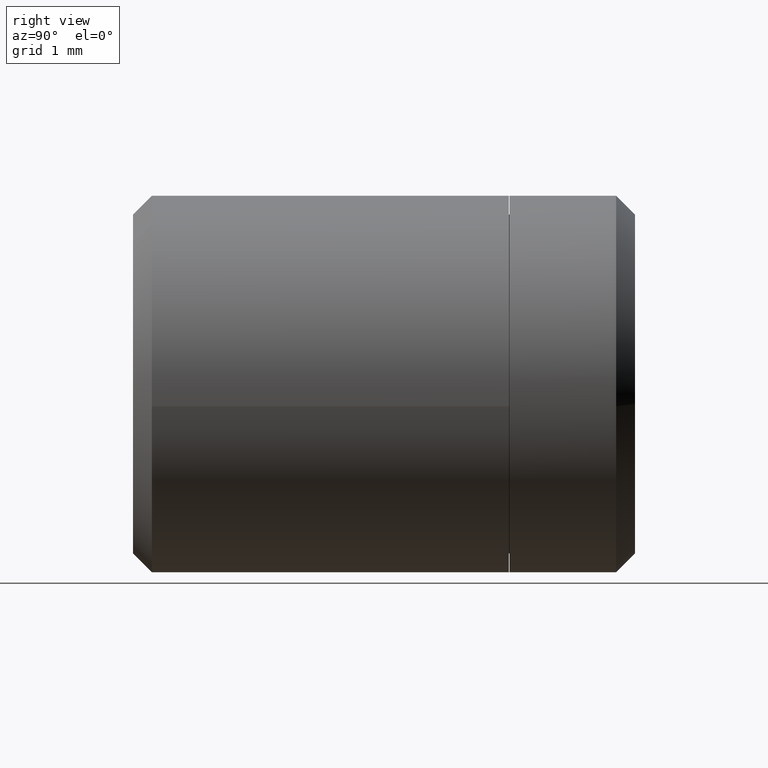
[diagram: clean part render]
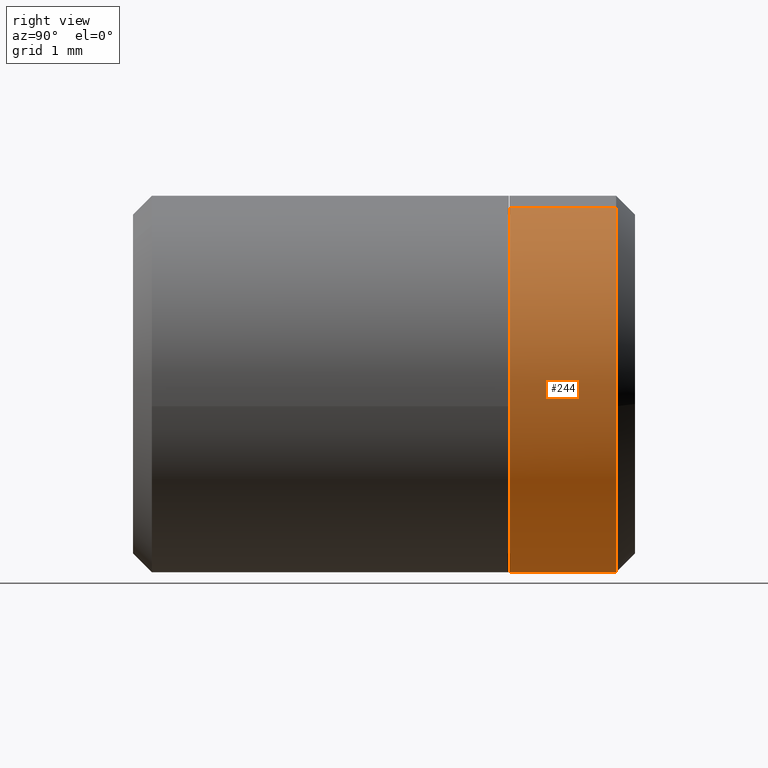
[diagram: same view with one face highlighted and labeled with its STEP entity id]
A machine part, right view. The second image highlights one B-rep face of the part: STEP entity #244.
In plain terms, the highlighted face is a freeform B-spline surface patch.
Its self-contained STEP definition (entity closure, byte-faithful):
#62=CARTESIAN_POINT('',(1.054852533849337,7.700004999999996,2.808431258163427));
#63=VERTEX_POINT('',#62);
#79=CARTESIAN_POINT('',(-2.994404395265843,7.700004999999138,0.183145618607985));
#80=VERTEX_POINT('',#79);
#94=CARTESIAN_POINT('',(-2.994404536972982,6.0,0.183143301679935));
#95=VERTEX_POINT('',#94);
#96=CARTESIAN_POINT('',(-2.994404395265843,7.700004999999138,0.183145618607985));
#97=CARTESIAN_POINT('',(-2.994404536972982,6.0,0.183143301679935));
#98=QUASI_UNIFORM_CURVE('',1,(#96,#97),.UNSPECIFIED.,.F.,.U.);
#99=EDGE_CURVE('',#80,#95,#98,.T.);
#116=CARTESIAN_POINT('',(1.054852924770753,6.0,2.808431111332702));
#117=VERTEX_POINT('',#116);
#131=CARTESIAN_POINT('',(1.054852533849337,7.700004999999996,2.808431258163427));
#132=CARTESIAN_POINT('',(1.054852924770753,6.0,2.808431111332702));
#133=QUASI_UNIFORM_CURVE('',1,(#131,#132),.UNSPECIFIED.,.F.,.U.);
#134=EDGE_CURVE('',#63,#117,#133,.T.);
#139=CARTESIAN_POINT('',(-2.994404395265600,7.742505125000000,0.183145618604568));
#140=CARTESIAN_POINT('',(-3.177550013870171,7.742505124999999,-2.811258776661032));
#141=CARTESIAN_POINT('',(-0.183145618604571,7.742505125000000,-2.994404395265603));
#142=CARTESIAN_POINT('',(2.811258776661029,7.742505124999999,-3.177550013870173));
#143=CARTESIAN_POINT('',(2.994404395265600,7.742505125000000,-0.183145618604573));
#144=CARTESIAN_POINT('',(3.129711668608025,7.742505125000000,2.029108745409193));
#145=CARTESIAN_POINT('',(1.054853923174716,7.742505125000001,2.808430736329969));
#146=CARTESIAN_POINT('',(-2.994404395265600,5.956437371874999,0.183145618604568));
#147=CARTESIAN_POINT('',(-3.177550013870171,5.956437371875000,-2.811258776661032));
#148=CARTESIAN_POINT('',(-0.183145618604571,5.956437371874999,-2.994404395265603));
#149=CARTESIAN_POINT('',(2.811258776661029,5.956437371875000,-3.177550013870173));
#150=CARTESIAN_POINT('',(2.994404395265600,5.956437371874999,-0.183145618604573));
#151=CARTESIAN_POINT('',(3.129711668608025,5.956437371874999,2.029108745409193));
#152=CARTESIAN_POINT('',(1.054853923174716,5.956437371874999,2.808430736329969));
#160=(BOUNDED_SURFACE()B_SPLINE_SURFACE(2,1,((#139,#146),(#140,#147),(#141,#148),(#142,#149),(#143,#150),(#144,#151),(#145,#152)),.UNSPECIFIED.,.F.,.F.,.U.)B_SPLINE_SURFACE_WITH_KNOTS((3,2,2,3),(2,2),(0.0,4.970562748477140,9.941125496954280,13.917575695735991),(0.0,1.0),.UNSPECIFIED.)GEOMETRIC_REPRESENTATION_ITEM()RATIONAL_B_SPLINE_SURFACE(((1.0,1.0),(0.707106781186548,0.707106781186548),(1.0,1.0),(0.707106781186548,0.707106781186548),(1.0,1.0),(0.765685424949238,0.765685424949238),(0.906274169979695,0.906274169979695)))REPRESENTATION_ITEM('')SURFACE());
#161=CARTESIAN_POINT('',(2.979028579091041,7.700004999999360,-0.354102703975353));
#162=VERTEX_POINT('',#161);
#163=CARTESIAN_POINT('',(2.979028579091041,7.700004999999360,-0.354102703975353));
#164=CARTESIAN_POINT('',(3.000000000000000,7.700005000000000,-0.177672358960785));
#165=CARTESIAN_POINT('',(3.0,7.700005000000000,-2.449213E-015));
#166=CARTESIAN_POINT('',(3.0,7.700005000000000,2.077829885096408));
#167=CARTESIAN_POINT('',(1.054852533849337,7.700004999999996,2.808431258163427));
#175=(BOUNDED_CURVE()B_SPLINE_CURVE(2,(#163,#164,#165,#166,#167),.UNSPECIFIED.,.F.,.U.)B_SPLINE_CURVE_WITH_KNOTS((3,2,3),(0.229562473515077,0.250000000000000,0.440284249036416),.UNSPECIFIED.)CURVE()GEOMETRIC_REPRESENTATION_ITEM()RATIONAL_B_SPLINE_CURVE((0.956026754186774,0.976055948332983,1.0,0.777068135240895,0.893499650257582))REPRESENTATION_ITEM(''));
#176=EDGE_CURVE('',#162,#63,#175,.T.);
#177=ORIENTED_EDGE('',*,*,#176,.T.);
#178=ORIENTED_EDGE('',*,*,#134,.T.);
#179=CARTESIAN_POINT('',(0.0,6.0,-3.000000000000003));
#180=VERTEX_POINT('',#179);
#181=CARTESIAN_POINT('',(0.0,6.0,-3.000000000000003));
#182=CARTESIAN_POINT('',(3.0,6.0,-3.000000000000003));
#183=CARTESIAN_POINT('',(3.0,6.0,-2.449213E-015));
#184=CARTESIAN_POINT('',(3.0,6.0,2.077829576142970));
#185=CARTESIAN_POINT('',(1.054852924770753,6.0,2.808431111332702));
#193=(BOUNDED_CURVE()B_SPLINE_CURVE(2,(#181,#182,#183,#184,#185),.UNSPECIFIED.,.F.,.U.)B_SPLINE_CURVE_WITH_KNOTS((3,2,3),(0.0,0.250000000000000,0.440284227050477),.UNSPECIFIED.)CURVE()GEOMETRIC_REPRESENTATION_ITEM()RATIONAL_B_SPLINE_CURVE((1.0,0.707106781186548,1.0,0.777068160999023,0.893499623351985))REPRESENTATION_ITEM(''));
#194=EDGE_CURVE('',#180,#117,#193,.T.);
#195=ORIENTED_EDGE('',*,*,#194,.F.);
#196=CARTESIAN_POINT('',(-2.994404536972982,5.999999999999999,0.183143301679935));
#197=CARTESIAN_POINT('',(-3.000000000000000,6.000000000000001,0.091657128185300));
#198=CARTESIAN_POINT('',(-3.0,6.0,-2.449213E-015));
#199=CARTESIAN_POINT('',(-3.0,6.0,-3.000000000000003));
#200=CARTESIAN_POINT('',(0.0,6.0,-3.000000000000003));
#208=(BOUNDED_CURVE()B_SPLINE_CURVE(2,(#196,#197,#198,#199,#200),.UNSPECIFIED.,.F.,.U.)B_SPLINE_CURVE_WITH_KNOTS((3,2,3),(0.739333095750304,0.750000000000000,1.0),.UNSPECIFIED.)CURVE()GEOMETRIC_REPRESENTATION_ITEM()RATIONAL_B_SPLINE_CURVE((0.976072327807147,0.987502944318127,1.0,0.707106781186548,1.0))REPRESENTATION_ITEM(''));
#209=EDGE_CURVE('',#95,#180,#208,.T.);
#210=ORIENTED_EDGE('',*,*,#209,.F.);
#211=ORIENTED_EDGE('',*,*,#99,.F.);
#212=CARTESIAN_POINT('',(0.0,7.700005000000000,-3.000000000000003));
#213=VERTEX_POINT('',#212);
#214=CARTESIAN_POINT('',(-2.994404395265842,7.700004999999138,0.183145618607985));
#215=CARTESIAN_POINT('',(-3.0,7.700005000000000,0.091658289902562));
#216=CARTESIAN_POINT('',(-3.0,7.700005000000000,-2.449213E-015));
#217=CARTESIAN_POINT('',(-3.0,7.700005000000000,-3.000000000000003));
#218=CARTESIAN_POINT('',(0.0,7.700005000000000,-3.000000000000003));
#226=(BOUNDED_CURVE()B_SPLINE_CURVE(2,(#214,#215,#216,#217,#218),.UNSPECIFIED.,.F.,.U.)B_SPLINE_CURVE_WITH_KNOTS((3,2,3),(0.739332962241187,0.750000000000000,1.0),.UNSPECIFIED.)CURVE()GEOMETRIC_REPRESENTATION_ITEM()RATIONAL_B_SPLINE_CURVE((0.976072041671527,0.987502787902467,1.0,0.707106781186548,1.0))REPRESENTATION_ITEM(''));
#227=EDGE_CURVE('',#80,#213,#226,.T.);
#228=ORIENTED_EDGE('',*,*,#227,.T.);
#229=CARTESIAN_POINT('',(0.0,7.700005000000000,-3.000000000000003));
#230=CARTESIAN_POINT('',(2.664523577845097,7.700004999999999,-3.000000000000003));
#231=CARTESIAN_POINT('',(2.979028579091041,7.700004999999360,-0.354102703975353));
#239=(BOUNDED_CURVE()B_SPLINE_CURVE(2,(#229,#230,#231),.UNSPECIFIED.,.F.,.U.)B_SPLINE_CURVE_WITH_KNOTS((3,3),(0.0,0.229562473515077),.UNSPECIFIED.)CURVE()GEOMETRIC_REPRESENTATION_ITEM()RATIONAL_B_SPLINE_CURVE((1.0,0.731050832853565,0.956026754186774))REPRESENTATION_ITEM(''));
#240=EDGE_CURVE('',#213,#162,#239,.T.);
#241=ORIENTED_EDGE('',*,*,#240,.T.);
#242=EDGE_LOOP('',(#177,#178,#195,#210,#211,#228,#241));
#243=FACE_OUTER_BOUND('',#242,.T.);
#244=ADVANCED_FACE('',(#243),#160,.T.);